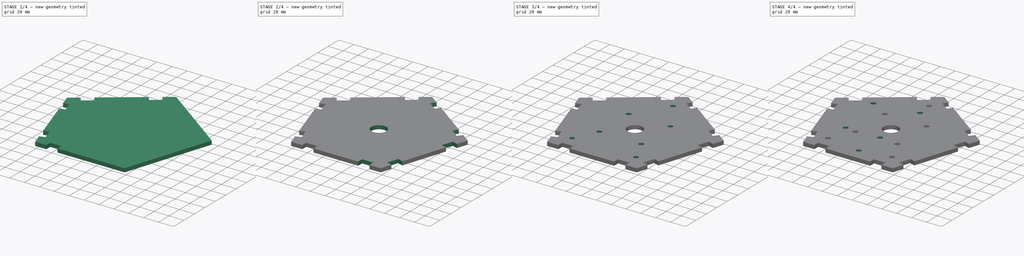
[diagram: build sequence overview — one tinted view per stage of 4, left to right]
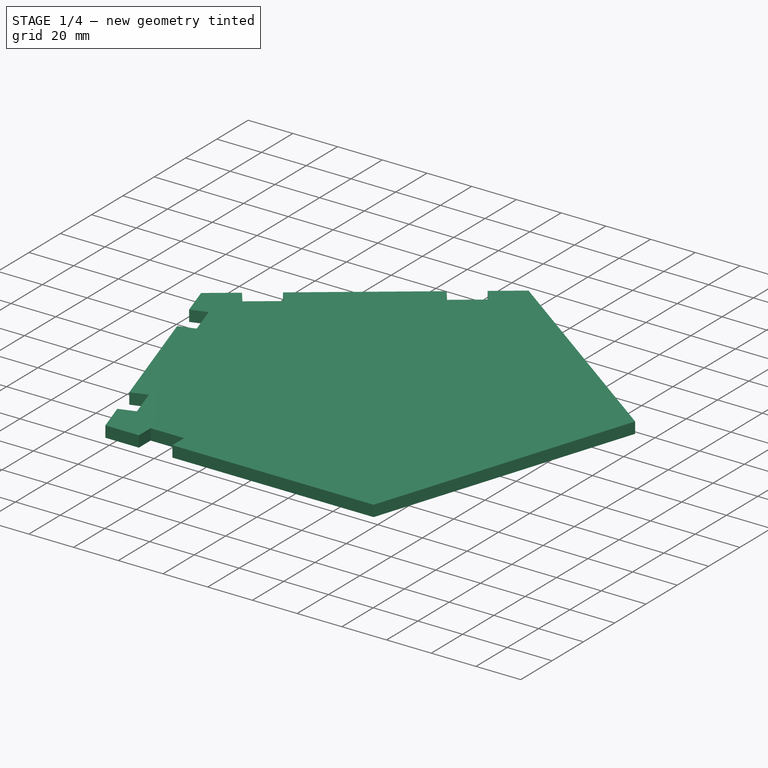
[diagram: stage 1 of 4 — iso view after this stage's code; geometry added in this stage tinted green]
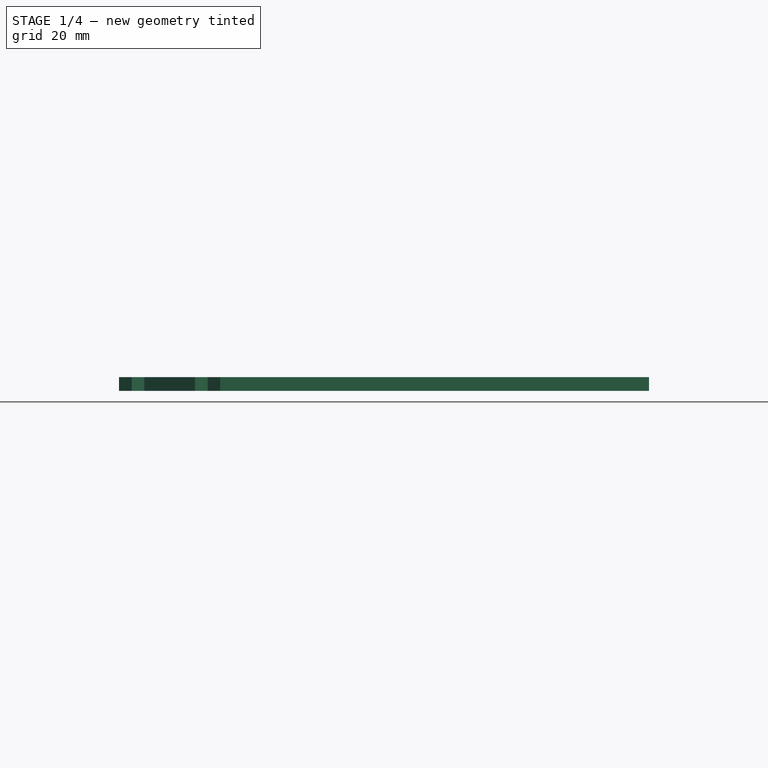
[diagram: stage 1 of 4 — front view after this stage's code; geometry added in this stage tinted green]
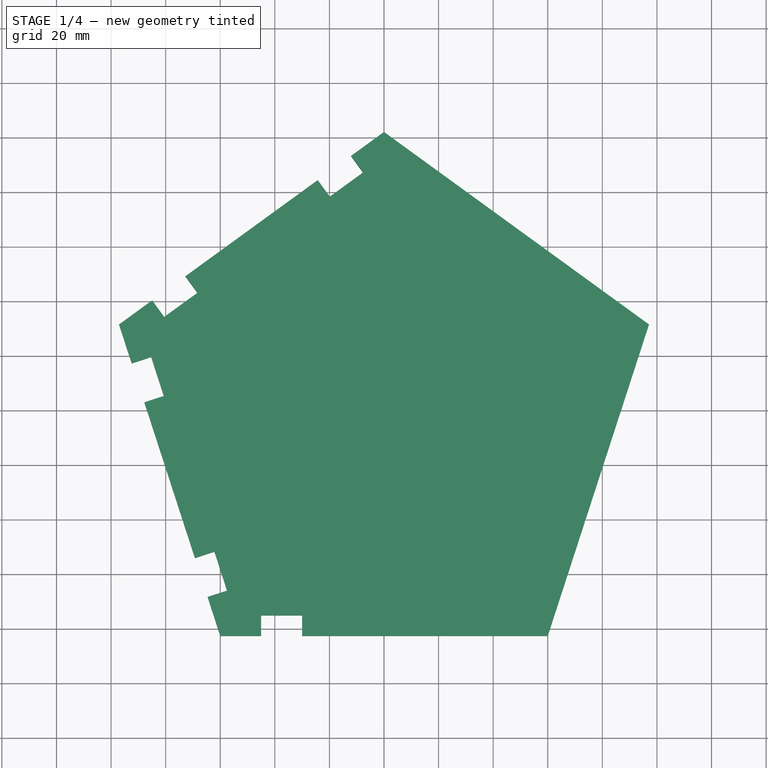
[diagram: stage 1 of 4 — top view after this stage's code; geometry added in this stage tinted green]
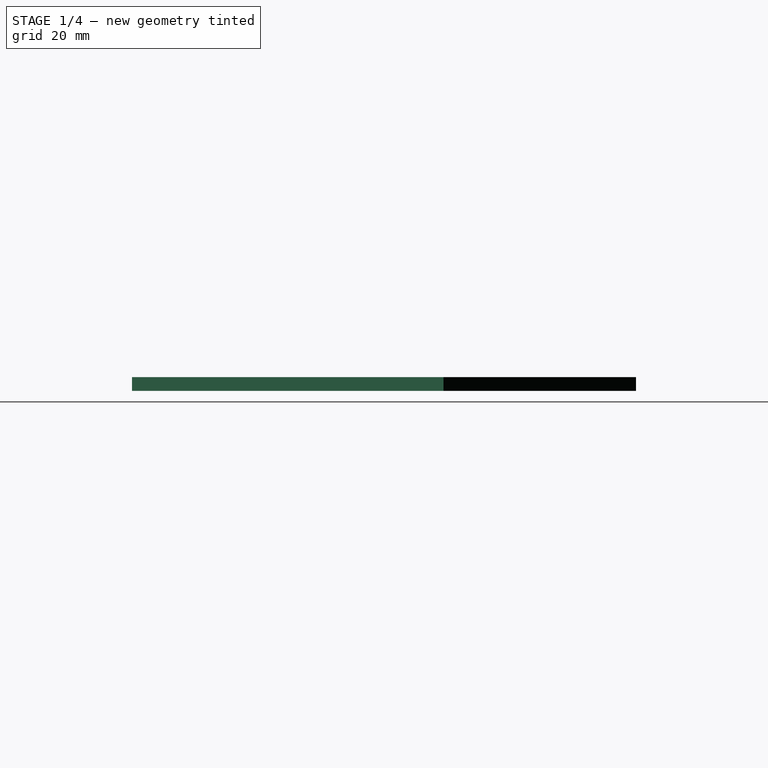
[diagram: stage 1 of 4 — right view after this stage's code; geometry added in this stage tinted green]
FCSTD DOCUMENT  (FreeCAD 0.15R4671 (Git))
Label: bas
License: All rights reserved
LicenseURL: http://fr.wikipedia.org/wiki/<copyright redacted>
objects: Sketcher::SketchObject×7, PartDesign::Pocket×6, PartDesign::Mirrored×3, PartDesign::Pad×1, PartDesign::MultiTransform×1
note: 25 computed .brp shape members not serialized (recipe doc carries the construction recipe); baked Part::Feature solids carry a one-line shape summary decoded from their .brp

FEATURE [Sketcher::SketchObject] Sketch  label="Pentagone_Sketch"
  sketch-geometry (6):
    g0: LineSegment StartX=0 StartY=102.078 StartZ=0 EndX=-97.082 EndY=31.5439 EndZ=0
    g1: LineSegment StartX=-97.082 StartY=31.5439 StartZ=0 EndX=-60 EndY=-82.5829 EndZ=0
    g2: LineSegment StartX=-60 StartY=-82.5829 StartZ=0 EndX=60 EndY=-82.5829 EndZ=0
    g3: LineSegment StartX=60 StartY=-82.5829 StartZ=0 EndX=97.082 EndY=31.5439 EndZ=0
    g4: LineSegment StartX=97.082 StartY=31.5439 StartZ=0 EndX=0 EndY=102.078 EndZ=0
    g5: Circle [constr] CenterX=0 CenterY=0 CenterZ=0 NormalX=0 NormalY=0 NormalZ=1 Radius=102.078
  constraints (15):
    c: Coincident(g0,g1)
    c: Coincident(g1,g2)
    c: Coincident(g2,g3)
    c: Coincident(g3,g4)
    c: Coincident(g4,g0)
    c: Equal(g0, g1-g4) x4
    c: PointOnObject(g0,g5)
    c: PointOnObject(g1,g5)
    c: PointOnObject(g2,g5)
    c: PointOnObject(g3,g5)
    c: PointOnObject(g4,g5)
    c: Coincident(g2,g-1)
    c: Distance(g0) = 120
    c: Coincident(g5,g-1)
    c: PointOnObject(g0,g-2)
FEATURE [PartDesign::Pad] Pad  label="Pentagone_Pad"
  Length = 5
  Length2 = 100
  Sketch = -> Sketch
  Type = 0
FEATURE [Sketcher::SketchObject] Sketch001
  ExternalGeometry = -> [Pad]
  Placement = pos=(0,0,5) rot=(0,0,1;0rad)
  Support = -> Pad [Face7]
  sketch-geometry (20):
    g0: LineSegment StartX=-84.9468 StartY=40.3606 StartZ=0 EndX=-72.8115 EndY=49.1774 EndZ=0
    g1: LineSegment StartX=-72.8115 StartY=49.1774 StartZ=0 EndX=-68.4031 EndY=43.1098 EndZ=0
    g2: LineSegment StartX=-68.4031 StartY=43.1098 StartZ=0 EndX=-80.5384 EndY=34.293 EndZ=0
    g3: LineSegment StartX=-80.5384 StartY=34.293 StartZ=0 EndX=-84.9468 EndY=40.3606 EndZ=0
    g4: LineSegment StartX=-12.1353 StartY=93.2613 StartZ=0 EndX=-7.72687 EndY=87.1937 EndZ=0
    g5: LineSegment StartX=-7.72687 StartY=87.1937 StartZ=0 EndX=-19.8621 EndY=78.3769 EndZ=0
    g6: LineSegment StartX=-19.8621 StartY=78.3769 StartZ=0 EndX=-24.2705 EndY=84.4445 EndZ=0
    g7: LineSegment StartX=-24.2705 StartY=84.4445 StartZ=0 EndX=-12.1353 EndY=93.2613 EndZ=0
    g8: LineSegment StartX=-92.4468 StartY=17.278 StartZ=0 EndX=-85.3139 EndY=19.5956 EndZ=0
    g9: LineSegment StartX=-85.3139 StartY=19.5956 StartZ=0 EndX=-80.6786 EndY=5.3298 EndZ=0
    g10: LineSegment StartX=-80.6786 StartY=5.3298 StartZ=0 EndX=-87.8115 EndY=3.01217 EndZ=0
    g11: LineSegment StartX=-87.8115 StartY=3.01217 StartZ=0 EndX=-92.4468 EndY=17.278 EndZ=0
    g12: LineSegment StartX=-69.2705 StartY=-54.0512 StartZ=0 EndX=-62.1376 EndY=-51.7336 EndZ=0
    g13: LineSegment StartX=-62.1376 StartY=-51.7336 StartZ=0 EndX=-57.5023 EndY=-65.9994 EndZ=0
    g14: LineSegment StartX=-57.5023 StartY=-65.9994 StartZ=0 EndX=-64.6353 EndY=-68.3171 EndZ=0
    g15: LineSegment StartX=-64.6353 StartY=-68.3171 StartZ=0 EndX=-69.2705 EndY=-54.0512 EndZ=0
    g16: LineSegment StartX=-45 StartY=-82.5829 StartZ=0 EndX=-45 EndY=-75.0829 EndZ=0
    g17: LineSegment StartX=-45 StartY=-75.0829 StartZ=0 EndX=-30 EndY=-75.0829 EndZ=0
    g18: LineSegment StartX=-30 StartY=-75.0829 StartZ=0 EndX=-30 EndY=-82.5829 EndZ=0
    g19: LineSegment StartX=-30 StartY=-82.5829 StartZ=0 EndX=-45 EndY=-82.5829 EndZ=0
  constraints (61):
    c: PointOnObject(g0,g-3)
    c: PointOnObject(g0,g-3)
    c: Coincident(g0,g1)
    c: Coincident(g1,g2)
    c: Coincident(g2,g3)
    c: Coincident(g3,g0)
    c: Parallel(g1,g3)
    c: Perpendicular(g-3,g1)
    c: Parallel(g2,g-3)
    c: Distance(g0,g-4) = 15
    c: Distance(g1) = 7.5
    c: Distance(g2) = 15
    c: PointOnObject(g4,g-3)
    c: Coincident(g4,g5)
    c: Coincident(g5,g6)
    c: PointOnObject(g6,g-3)
    c: Coincident(g6,g7)
    c: Coincident(g7,g4)
    c: Perpendicular(g4,g-3)
    c: Parallel(g5,g-3)
    c: Equal(g1,g6)
    c: Equal(g6,g4)
    c: Equal(g5,g2)
    c: Distance(g4,g-3) = 15
    c: PointOnObject(g8,g-4)
    c: Coincident(g8,g9)
    c: Coincident(g9,g10)
    c: PointOnObject(g10,g-4)
    c: Coincident(g10,g11)
    c: Coincident(g11,g8)
    c: Parallel(g8,g10)
    c: Equal(g3,g8)
    c: Equal(g8,g10)
    c: Equal(g9,g2)
    c: Perpendicular(g-4,g8)
    c: Distance(g-4,g8) = 15
    c: PointOnObject(g12,g-4)
    c: Coincident(g12,g13)
    c: Coincident(g13,g14)
    c: PointOnObject(g14,g-4)
    c: Coincident(g14,g15)
    c: Coincident(g15,g12)
    c: Perpendicular(g-4,g12)
    c: Equal(g12,g14)
    c: Equal(g14,g10)
    c: Equal(g13,g9)
    c: Parallel(g12,g14)
    c: Distance(g14,g-4) = 15
    c: PointOnObject(g16,g-5)
    c: Vertical(g16)
    c: Coincident(g16,g17)
    c: Horizontal(g17)
    c: Coincident(g17,g18)
    c: Vertical(g18)
    c: Coincident(g18,g19)
    c: Coincident(g19,g16)
    c: Horizontal(g19)
    c: Equal(g16,g18)
    c: Equal(g18,g14)
    c: Equal(g17,g13)
    c: Distance(g16,g-5) = 15
FEATURE [PartDesign::Pocket] Pocket  label="BorderAttachLeft_Pocket"
  Length = 0
  Sketch = -> Sketch001
  Type = 1
  UpToFace = -> Pad [Face6]
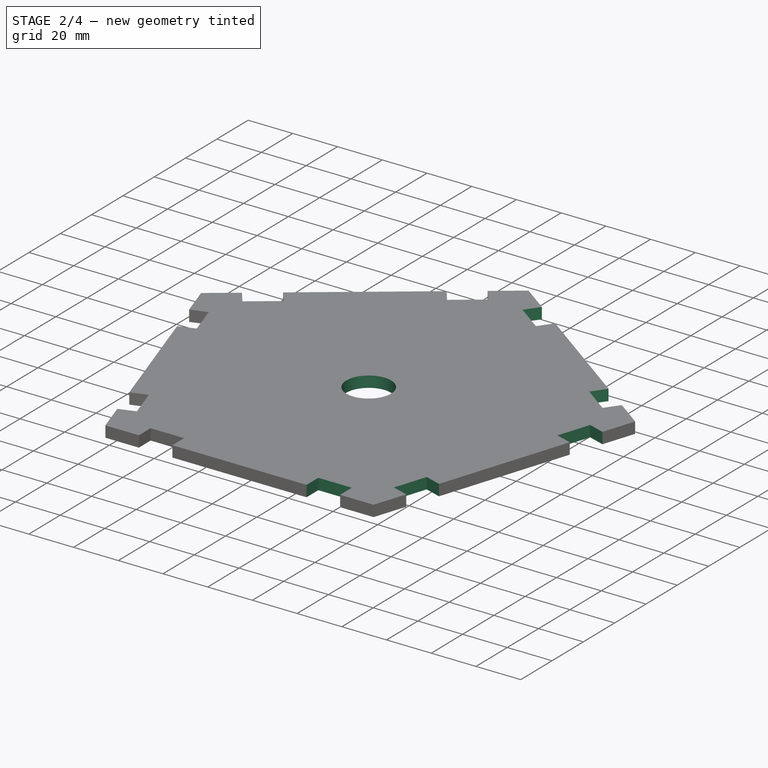
[diagram: stage 2 of 4 — iso view after this stage's code; geometry added in this stage tinted green]
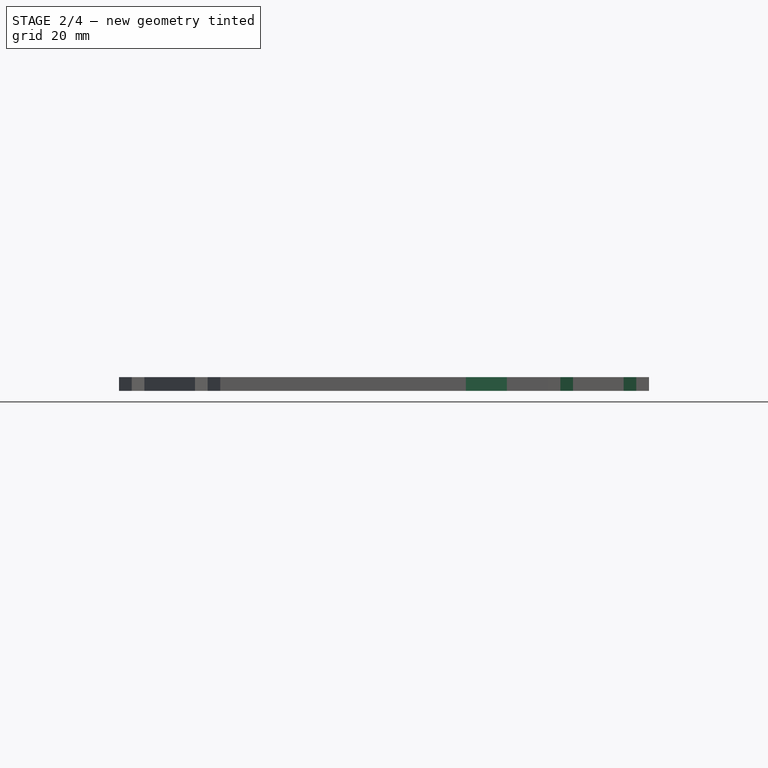
[diagram: stage 2 of 4 — front view after this stage's code; geometry added in this stage tinted green]
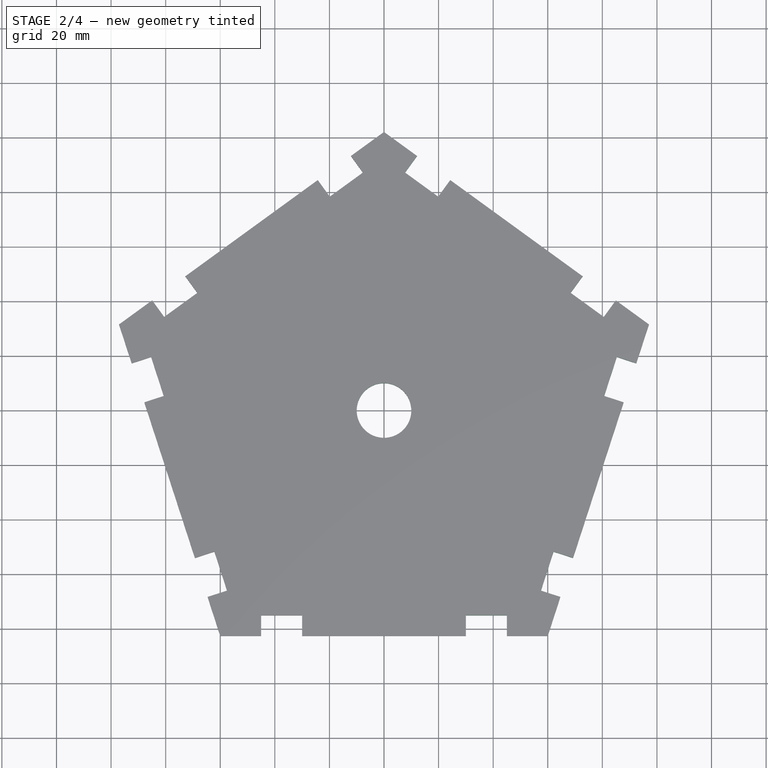
[diagram: stage 2 of 4 — top view after this stage's code; geometry added in this stage tinted green]
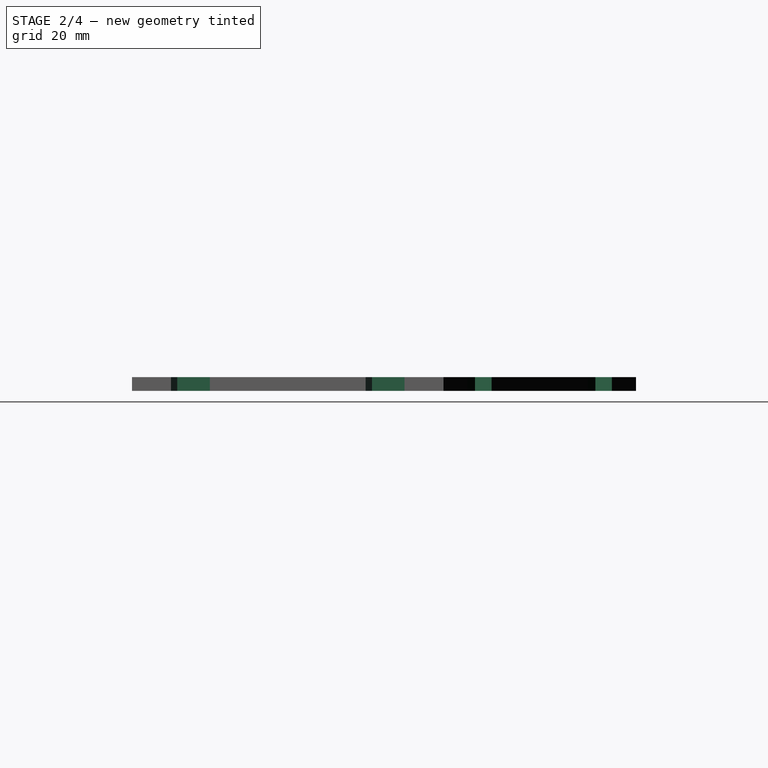
[diagram: stage 2 of 4 — right view after this stage's code; geometry added in this stage tinted green]
FEATURE [PartDesign::Mirrored] Mirrored  label="BorderAttachAll_Mirrored"
  MirrorPlane = -> Sketch001 [V_Axis]
  Originals = -> [Pocket]
FEATURE [Sketcher::SketchObject] Sketch002
  Placement = pos=(0,0,5) rot=(0,0,1;0rad)
  Support = -> Mirrored [Face4]
  sketch-geometry (1):
    g0: Circle CenterX=0 CenterY=0 CenterZ=0 NormalX=0 NormalY=0 NormalZ=1 Radius=10
  constraints (2):
    c: Coincident(g0,g-1)
    c: Radius(g0) = 10
FEATURE [PartDesign::Pocket] Pocket001  label="CenterHole_Pocket001"
  Length = 5
  Sketch = -> Sketch002
  Type = 1
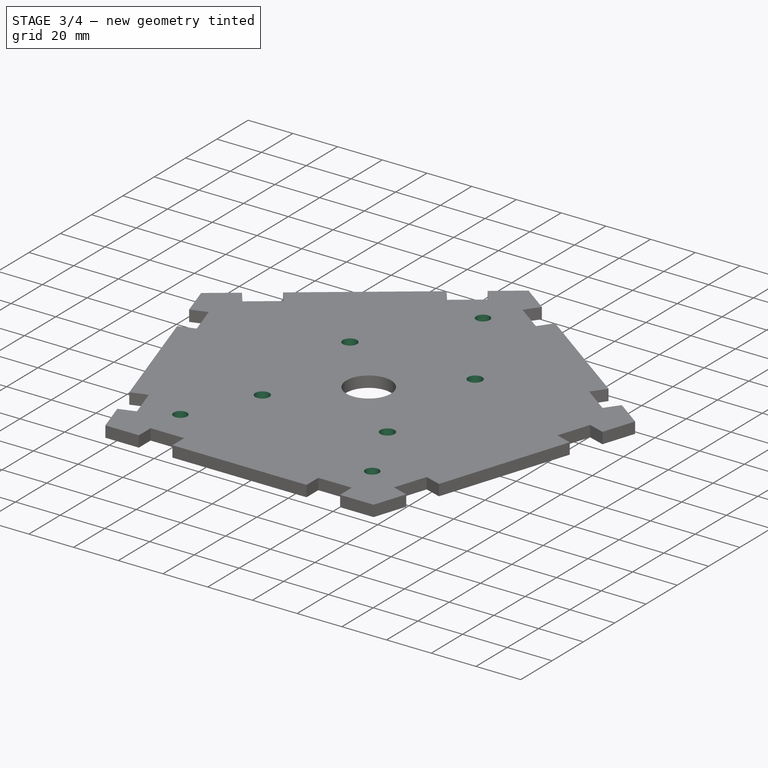
[diagram: stage 3 of 4 — iso view after this stage's code; geometry added in this stage tinted green]
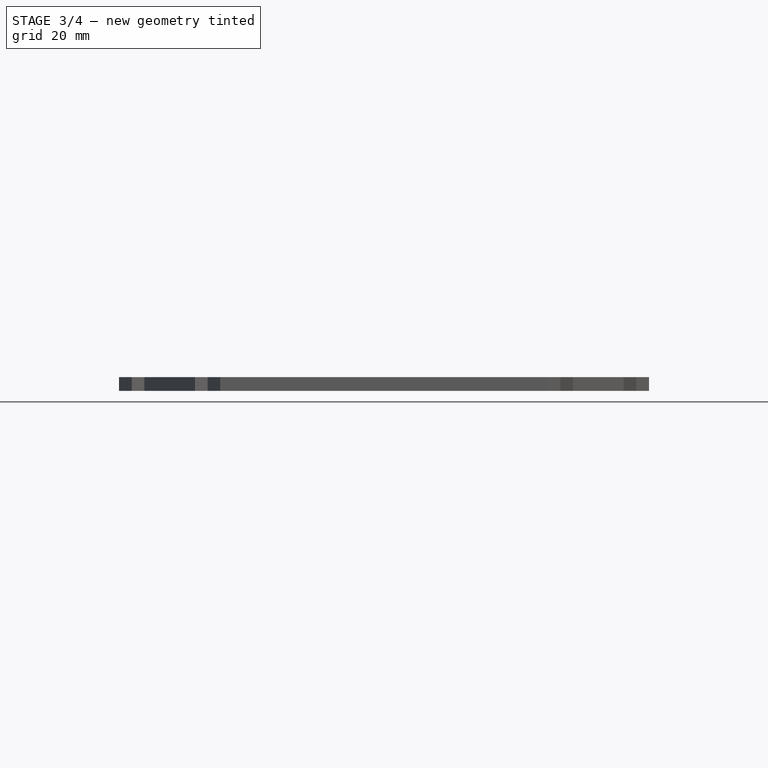
[diagram: stage 3 of 4 — front view after this stage's code; geometry added in this stage tinted green]
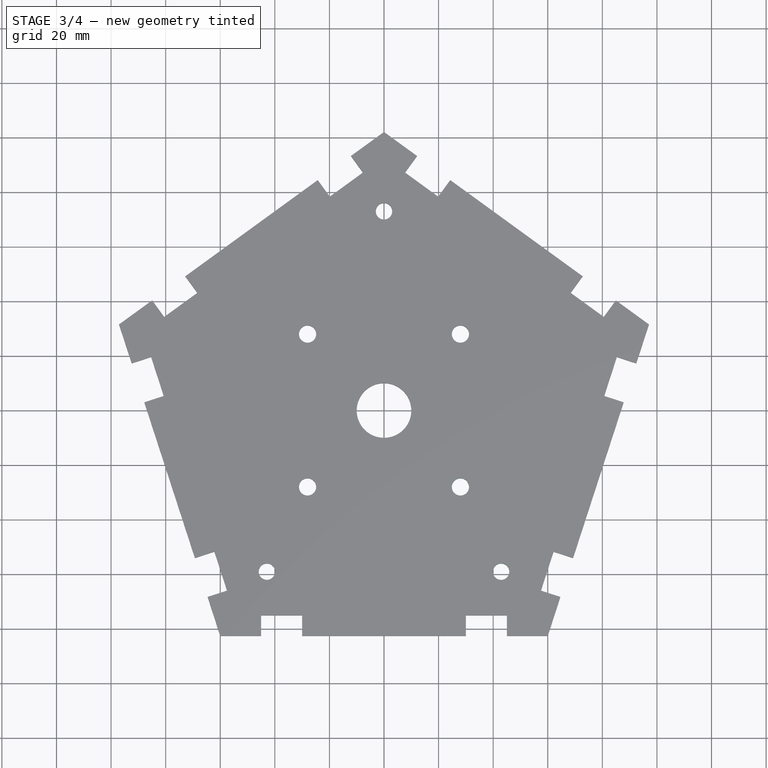
[diagram: stage 3 of 4 — top view after this stage's code; geometry added in this stage tinted green]
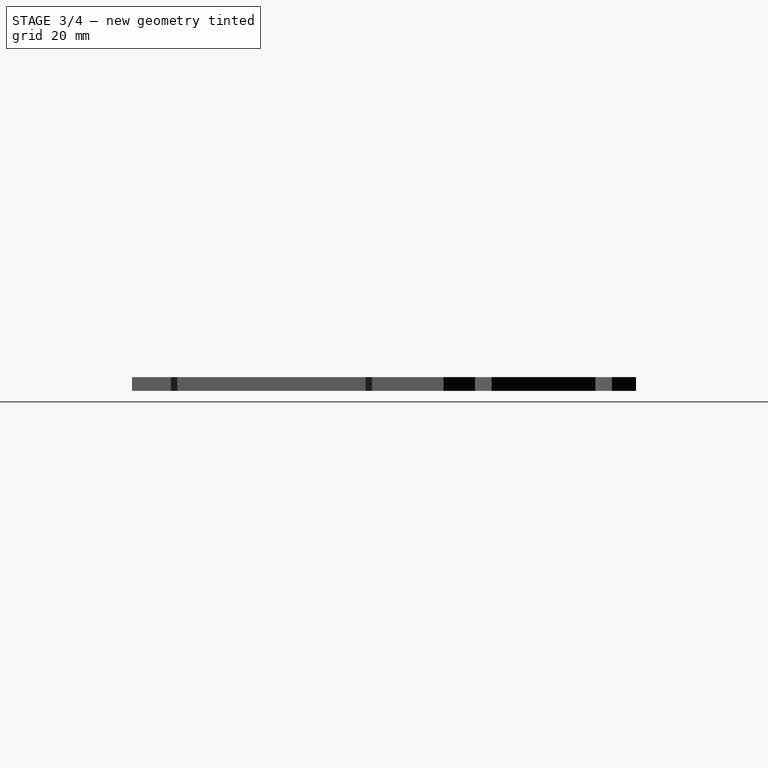
[diagram: stage 3 of 4 — right view after this stage's code; geometry added in this stage tinted green]
FEATURE [Sketcher::SketchObject] Sketch003
  Placement = pos=(0,0,5) rot=(0,0,1;0rad)
  Support = -> Pocket001 [Face4]
  sketch-geometry (1):
    g0: Circle CenterX=-28 CenterY=28 CenterZ=0 NormalX=0 NormalY=0 NormalZ=1 Radius=3.15
  constraints (3):
    c: Radius(g0) = 3.15
    c: DistanceX(g-1,g0) = -28
    c: DistanceY(g-1,g0) = 28
FEATURE [PartDesign::Pocket] Pocket002  label="ScrewHole_Pocket002"
  Length = 5
  Sketch = -> Sketch003
  Type = 1
FEATURE [PartDesign::Mirrored] Mirrored001
  MirrorPlane = -> Sketch003 [V_Axis]
FEATURE [PartDesign::Mirrored] Mirrored002
  MirrorPlane = -> Sketch003 [H_Axis]
FEATURE [PartDesign::MultiTransform] MultiTransform  label="ScrewHoles_MultiTransform"
  Originals = -> [Pocket002]
  Transformations = -> [Mirrored001,Mirrored002]
FEATURE [Sketcher::SketchObject] Sketch004  label="EtagInt_ScrewHoles_Sketch004"
  ExternalGeometry = -> [MultiTransform]
  Placement = pos=(0,0,5) rot=(0,0,1;0rad)
  Support = -> MultiTransform [Face4]
  sketch-geometry (9):
    g0: LineSegment [constr] StartX=0 StartY=0 StartZ=0 EndX=-60 EndY=-82.5829 EndZ=0
    g1: LineSegment [constr] StartX=0 StartY=0 StartZ=0 EndX=60 EndY=-82.5829 EndZ=0
    g2: LineSegment [constr] StartX=0 StartY=0 StartZ=0 EndX=0 EndY=102.078 EndZ=0
    g3: Circle CenterX=0 CenterY=73 CenterZ=0 NormalX=0 NormalY=0 NormalZ=1 Radius=3
    g4: Circle CenterX=-42.9083 CenterY=-59.0582 CenterZ=0 NormalX=0 NormalY=0 NormalZ=1 Radius=3
    g5: Circle CenterX=42.9083 CenterY=-59.0582 CenterZ=0 NormalX=0 NormalY=0 NormalZ=1 Radius=3
    g6: LineSegment [constr] StartX=0 StartY=0 StartZ=0 EndX=0 EndY=73 EndZ=0
    g7: LineSegment [constr] StartX=0 StartY=0 StartZ=0 EndX=-42.9083 EndY=-59.0582 EndZ=0
    g8: LineSegment [constr] StartX=0 StartY=0 StartZ=0 EndX=42.9083 EndY=-59.0582 EndZ=0
  constraints (21):
    c: Coincident(g0,g-1)
    c: Coincident(g0,g-3)
    c: Coincident(g1,g-1)
    c: Coincident(g1,g-4)
    c: Coincident(g2,g-1)
    c: Coincident(g2,g-5)
    c: Radius(g3) = 3
    c: Equal(g3,g4)
    c: Equal(g3,g5)
    c: Parallel(g6,g2)
    c: Coincident(g3,g6)
    c: Coincident(g4,g7)
    c: Parallel(g7,g0)
    c: Coincident(g8,g5)
    c: Parallel(g8,g1)
    c: Equal(g7,g6)
    c: Equal(g6,g8)
    c: Distance(g6) = 73
    c: Coincident(g7,g8)
    c: Coincident(g7,g6)
    c: Coincident(g7,g-1)
FEATURE [PartDesign::Pocket] Pocket003  label="EtagInt_ScrewHoles_Pocket003"
  Length = 5
  Sketch = -> Sketch004
  Type = 1
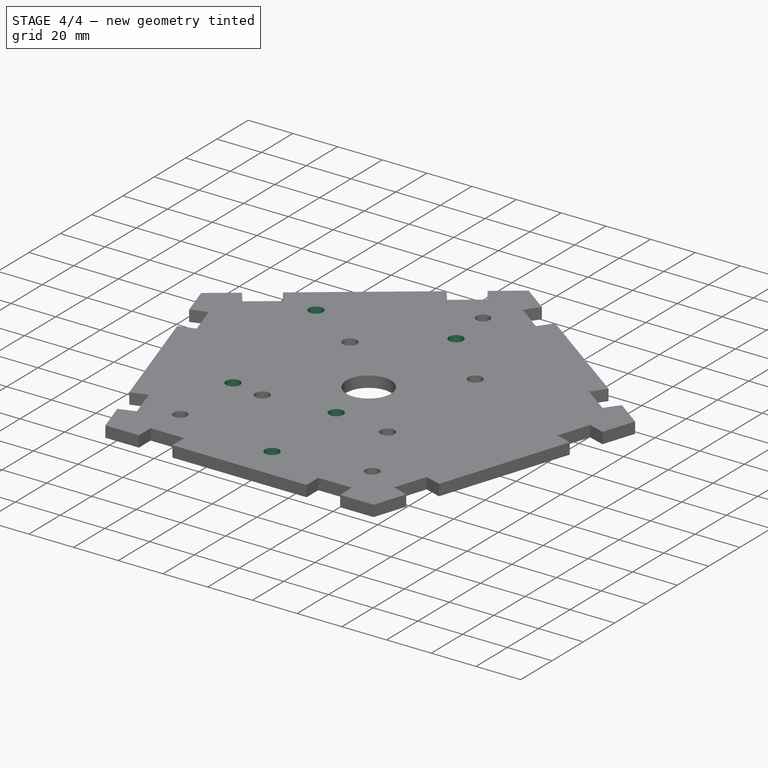
[diagram: stage 4 of 4 — iso view after this stage's code; geometry added in this stage tinted green]
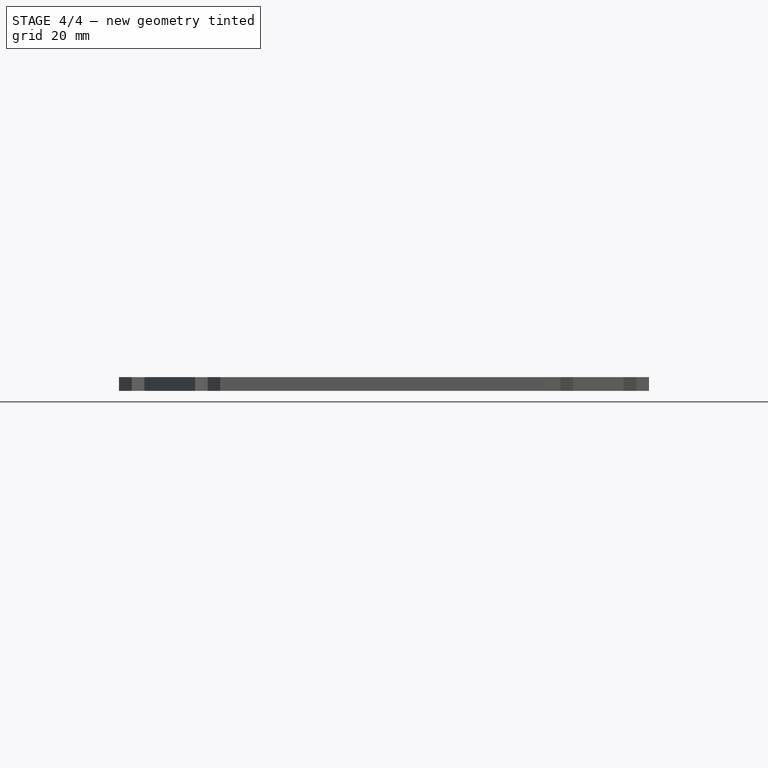
[diagram: stage 4 of 4 — front view after this stage's code; geometry added in this stage tinted green]
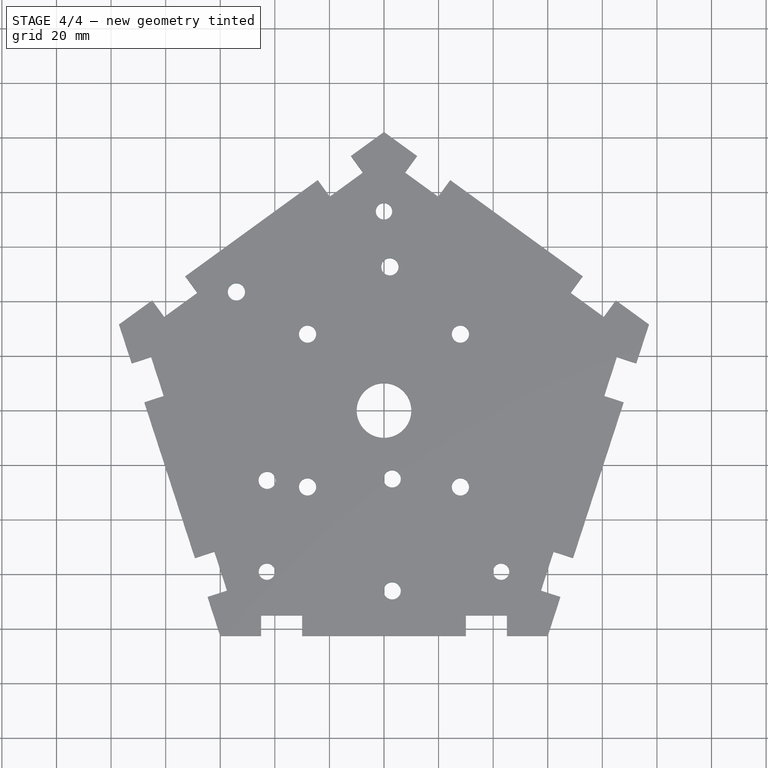
[diagram: stage 4 of 4 — top view after this stage's code; geometry added in this stage tinted green]
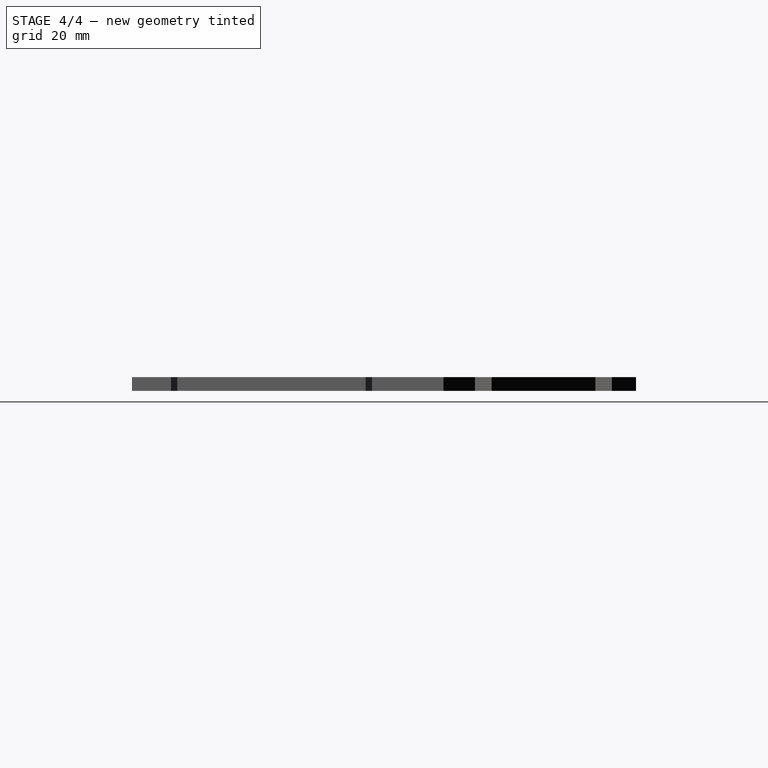
[diagram: stage 4 of 4 — right view after this stage's code; geometry added in this stage tinted green]
FEATURE [Sketcher::SketchObject] Sketch005  label="RPIScrew_Sketch005"
  ExternalGeometry = -> [Pocket003]
  Placement = pos=(0,0,5) rot=(0,0,1;0rad)
  Support = -> Pocket003 [Face4]
  sketch-geometry (21):
    g0: LineSegment [constr] StartX=-67.1305 StartY=-22.4693 StartZ=0 EndX=16.7599 EndY=-8.77964 EndZ=0
    g1: LineSegment [constr] StartX=16.7599 StartY=-8.77964 StartZ=0 EndX=7.74082 EndY=46.4893 EndZ=0
    g2: LineSegment [constr] StartX=7.74082 StartY=46.4893 StartZ=0 EndX=-76.1495 EndY=32.7996 EndZ=0
    g3: LineSegment [constr] StartX=-76.1495 StartY=32.7996 StartZ=0 EndX=-67.1305 EndY=-22.4693 EndZ=0
    g4: Circle [constr] CenterX=-72.1315 CenterY=29.909 CenterZ=0 NormalX=0 NormalY=0 NormalZ=1 Radius=1.25
    g5: LineSegment [constr] StartX=-72.1315 StartY=29.909 StartZ=0 EndX=-75.5858 EndY=29.3453 EndZ=0
    g6: LineSegment [constr] StartX=-72.1315 StartY=29.909 StartZ=0 EndX=-72.6952 EndY=33.3633 EndZ=0
    g7: Circle CenterX=-54.082 CenterY=43.4828 CenterZ=0 NormalX=0 NormalY=0 NormalZ=1 Radius=3.15
    g8: LineSegment [constr] StartX=-54.082 StartY=43.4828 StartZ=0 EndX=-73.8209 EndY=40.2617 EndZ=0
    g9: LineSegment [constr] StartX=-72.6952 StartY=33.3633 StartZ=0 EndX=-73.8209 EndY=40.2617 EndZ=0
    g10: Circle CenterX=-42.8115 CenterY=-25.5829 CenterZ=0 NormalX=0 NormalY=0 NormalZ=1 Radius=3.15
    g11: LineSegment [constr] StartX=-54.082 StartY=43.4828 StartZ=0 EndX=2.17385 EndY=52.663 EndZ=0
    g12: Circle CenterX=2.17385 CenterY=52.663 CenterZ=0 NormalX=0 NormalY=0 NormalZ=1 Radius=3.15
    g13: LineSegment [constr] StartX=-71.64 StartY=5.16516 StartZ=0 EndX=12.2504 EndY=18.8548 EndZ=0
    g14: LineSegment [constr] StartX=-52.7936 StartY=35.5873 StartZ=0 EndX=-54.082 EndY=43.4828 EndZ=0
    g15: LineSegment [constr] StartX=-70.4707 StartY=32.7026 StartZ=0 EndX=-52.7936 EndY=35.5873 EndZ=0
    g16: LineSegment [constr] StartX=-34.3788 StartY=11.2456 StartZ=0 EndX=-70.4707 EndY=32.7026 EndZ=0
    g17: LineSegment [constr] StartX=-44.359 StartY=9.61702 StartZ=0 EndX=-73.7924 EndY=27.1154 EndZ=0
    g18: ArcOfCircle [constr] CenterX=-72.1315 CenterY=29.909 CenterZ=0 NormalX=0 NormalY=0 NormalZ=1 Radius=3.25 StartAngle=1.03442 EndAngle=4.17602
    g19: LineSegment [constr] StartX=-73.7924 StartY=27.1154 StartZ=0 EndX=-70.4707 EndY=32.7026 EndZ=0
    g20: LineSegment [constr] StartX=-44.359 StartY=9.61702 StartZ=0 EndX=-41.0374 EndY=15.2042 EndZ=0
  constraints (60):
    c: Coincident(g0,g1)
    c: Coincident(g1,g2)
    c: Coincident(g2,g3)
    c: Coincident(g3,g0)
    c: Perpendicular(g0,g3)
    c: Perpendicular(g1,g2)
    c: Parallel(g1,g3)
    c: Distance(g3) = 56
    c: Distance(g0) = 85
    c: Coincident(g5,g4)
    c: PointOnObject(g5,g3)
    c: Perpendicular(g5,g3)
    c: Coincident(g6,g4)
    c: PointOnObject(g6,g2)
    c: Perpendicular(g2,g6)
    c: Distance(g6) = 3.5
    c: Coincident(g8,g7)
    c: Parallel(g8,g2)
    c: Distance(g8) = 20
    c: Coincident(g9,g6)
    c: Coincident(g9,g8)
    c: Perpendicular(g2,g9)
    c: Radius(g4) = 1.25
    c: Radius(g7) = 3.15
    c: Coincident(g11,g7)
    c: Distance(g11) = 57
    c: Parallel(g11,g2)
    c: Coincident(g12,g11)
    c: Equal(g12,g7)
    c: PointOnObject(g13,g3)
    c: PointOnObject(g13,g1)
    c: Perpendicular(g1,g13)
    c: Symmetric(g0,g2,g13)
    c: Symmetric(g7,g10,g13)
    c: Equal(g10,g7)
    c: Coincident(g14,g7)
    c: Distance(g14) = 8
    c: Coincident(g15,g14)
    c: Parallel(g15,g2)
    c: Perpendicular(g14,g15)
    c: PointOnObject(g16,g13)
    c: Angle(g16,g13) = 0.698132
    c: PointOnObject(g17,g13)
    c: Parallel(g17,g16)
    c: Coincident(g18,g4)
    c: Coincident(g18,g16)
    c: Coincident(g18,g17)
    c: Coincident(g19,g17)
    c: Coincident(g19,g16)
    c: PointOnObject(g4,g19)
    c: Coincident(g15,g16)
    c: Distance(g19) = 6.5
    c: PointOnObject(g20,g16)
    c: Perpendicular(g17,g20)
    c: Coincident(g20,g17)
    c: Distance(g5) = 3.5
    c: Parallel(g19,g20)
    c: DistanceX(g10,g-5) = -45
    c: DistanceY(g-6,g10) = 57
    c: DistanceX(g7,g-7) = -43
FEATURE [PartDesign::Pocket] Pocket004  label="RPIScrews_Pocket004"
  Length = 5
  Sketch = -> Sketch005
  Type = 1
FEATURE [Sketcher::SketchObject] Sketch006  label="SensorBoard_Sketch006"
  ExternalGeometry = -> [Pocket004]
  Placement = pos=(0,0,5) rot=(0,0,1;0rad)
  Support = -> Pocket004 [Face4]
  sketch-geometry (12):
    g0: LineSegment [constr] StartX=-6.62119 StartY=-60.3166 StartZ=0 EndX=-6.62119 EndY=-30.8166 EndZ=0
    g1: LineSegment [constr] StartX=12.6212 StartY=-30.8166 StartZ=0 EndX=12.6212 EndY=-60.3166 EndZ=0
    g2: Circle CenterX=3 CenterY=-66.0829 CenterZ=0 NormalX=0 NormalY=0 NormalZ=1 Radius=3.15
    g3: Circle CenterX=3 CenterY=-25.0504 CenterZ=0 NormalX=0 NormalY=0 NormalZ=1 Radius=3.15
    g4: ArcOfCircle [constr] CenterX=3 CenterY=-66.0829 CenterZ=0 NormalX=0 NormalY=0 NormalZ=1 Radius=6.5 StartAngle=2.05052 EndAngle=7.37425
    g5: ArcOfCircle [constr] CenterX=3 CenterY=-25.0504 CenterZ=0 NormalX=0 NormalY=0 NormalZ=1 Radius=6.5 StartAngle=5.19212 EndAngle=10.5158
    g6: LineSegment [constr] StartX=-6.62119 StartY=-60.3166 StartZ=0 EndX=0 EndY=-60.3166 EndZ=0
    g7: LineSegment [constr] StartX=6 StartY=-60.3166 StartZ=0 EndX=12.6212 EndY=-60.3166 EndZ=0
    g8: LineSegment [constr] StartX=-6.62119 StartY=-30.8166 StartZ=0 EndX=0 EndY=-30.8166 EndZ=0
    g9: LineSegment [constr] StartX=12.6212 StartY=-30.8166 StartZ=0 EndX=6 EndY=-30.8166 EndZ=0
    g10: LineSegment [constr] StartX=3 StartY=-66.0829 StartZ=0 EndX=3 EndY=-25.0504 EndZ=0
    g11: LineSegment [constr] StartX=-6.62119 StartY=-45.5666 StartZ=0 EndX=3 EndY=-45.5666 EndZ=0
  constraints (37):
    c: Distance(g0) = 29.5
    c: Radius(g2) = 3.15
    c: Equal(g2,g3)
    c: Coincident(g4,g2)
    c: Coincident(g5,g3)
    c: Radius(g4) = 6.5
    c: Equal(g4,g5)
    c: Coincident(g6,g0)
    c: Coincident(g6,g4)
    c: Coincident(g7,g4)
    c: Coincident(g7,g1)
    c: Distance(g4,g4) = 6
    c: Coincident(g9,g1)
    c: Coincident(g5,g9)
    c: Coincident(g5,g8)
    c: Coincident(g0,g8)
    c: Equal(g0,g1)
    c: Distance(g5,g5) = 6
    c: Perpendicular(g0,g6)
    c: Perpendicular(g0,g8)
    c: Parallel(g7,g6)
    c: Perpendicular(g1,g7)
    c: Perpendicular(g9,g1)
    c: Coincident(g10,g2)
    c: Coincident(g10,g3)
    c: Parallel(g10,g1)
    c: Equal(g6,g7)
    c: Equal(g8,g9)
    c: Distance(g6) = 6.62119
    c: PointOnObject(g11,g0)
    c: PointOnObject(g11,g10)
    c: Perpendicular(g0,g11)
    c: Symmetric(g0,g0,g11)
    c: Symmetric(g2,g3,g11)
    c: DistanceX(g2,g-3) = -33
    c: DistanceX(g3,g-3) = -33
    c: DistanceY(g-4,g2) = 9
FEATURE [PartDesign::Pocket] Pocket005  label="SensorBoard_Pocket005"
  Length = 5
  Sketch = -> Sketch006
  Type = 1
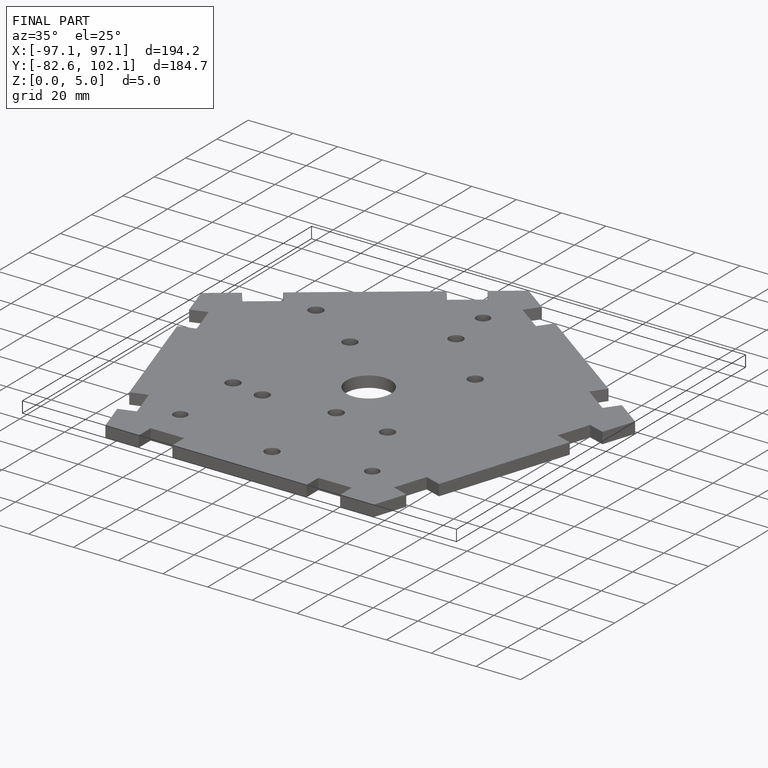
[diagram: finished part — iso view with bounding-box wireframe]
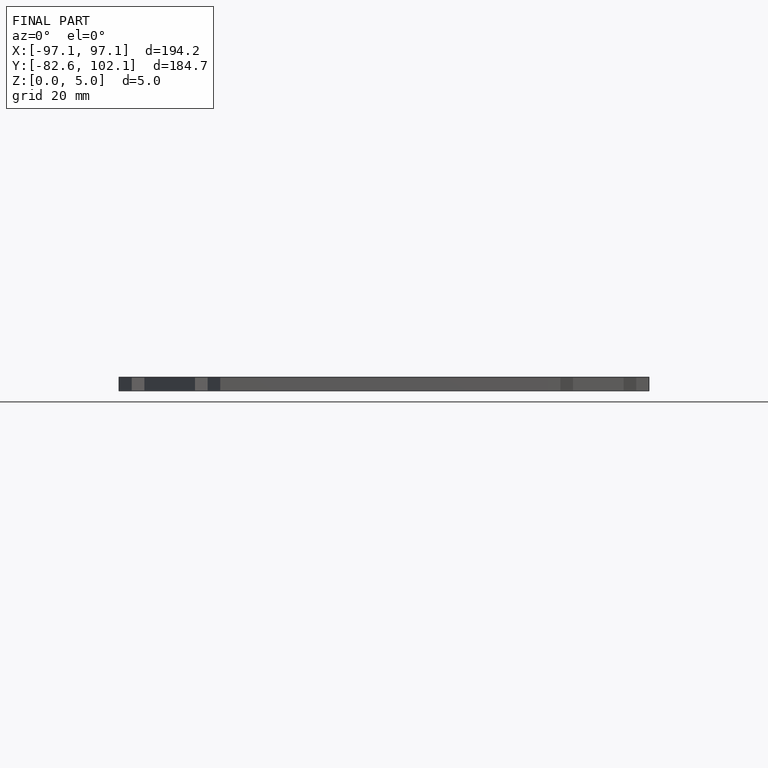
[diagram: finished part — front view with bounding-box wireframe]
